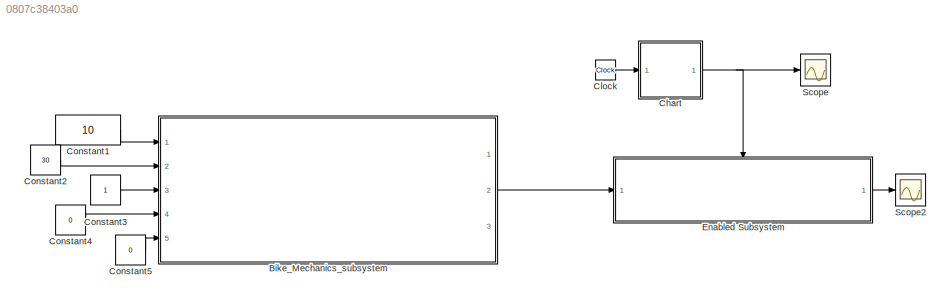
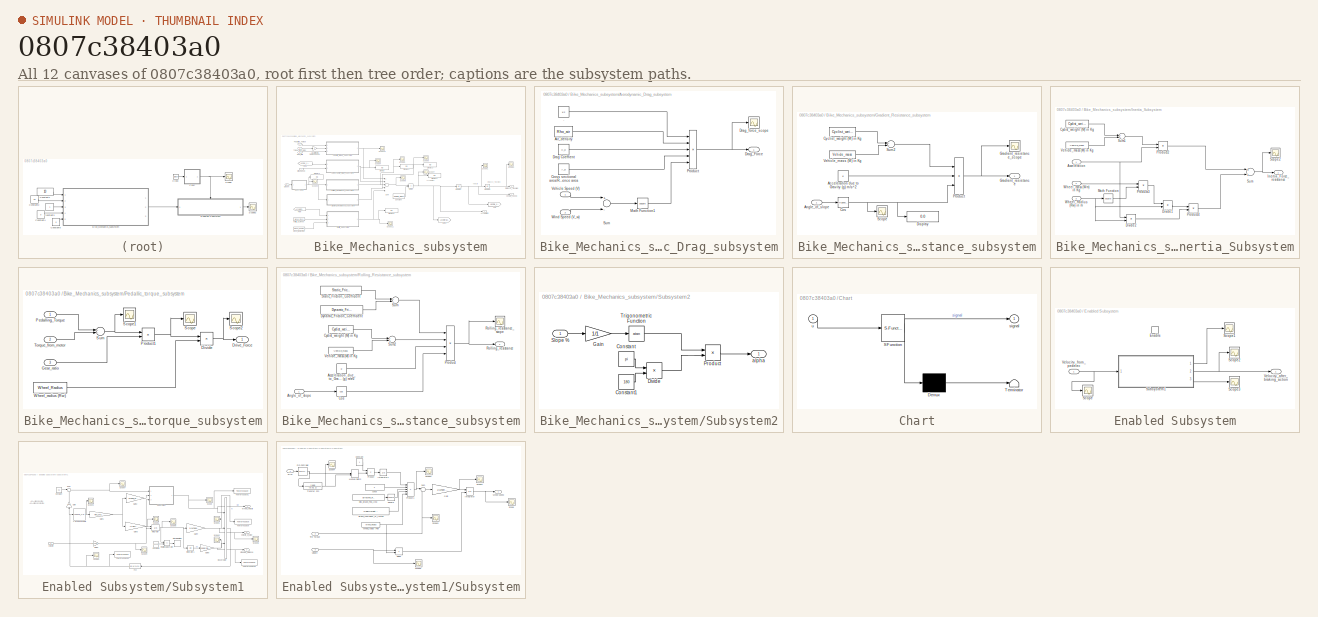
[diagram: thumbnail index - all 12 canvases of the model, root first then tree order]
MODEL slx_0807c38403a0
KIND model
CONFIG AbsTol = auto
CONFIG EnableMultiTasking = off
CONFIG FixedStep = auto
CONFIG InitFcn = Tire_mass = 0.25;
CONFIG MaxStep = auto
CONFIG MinStep = auto
CONFIG RelTol = 1e-3
CONFIG SampleTimeConstraint = Unconstrained
CONFIG Solver = VariableStepAuto
CONFIG SolverName = VariableStepAuto
CONFIG StartTime = 0.0
CONFIG StopTime = 200
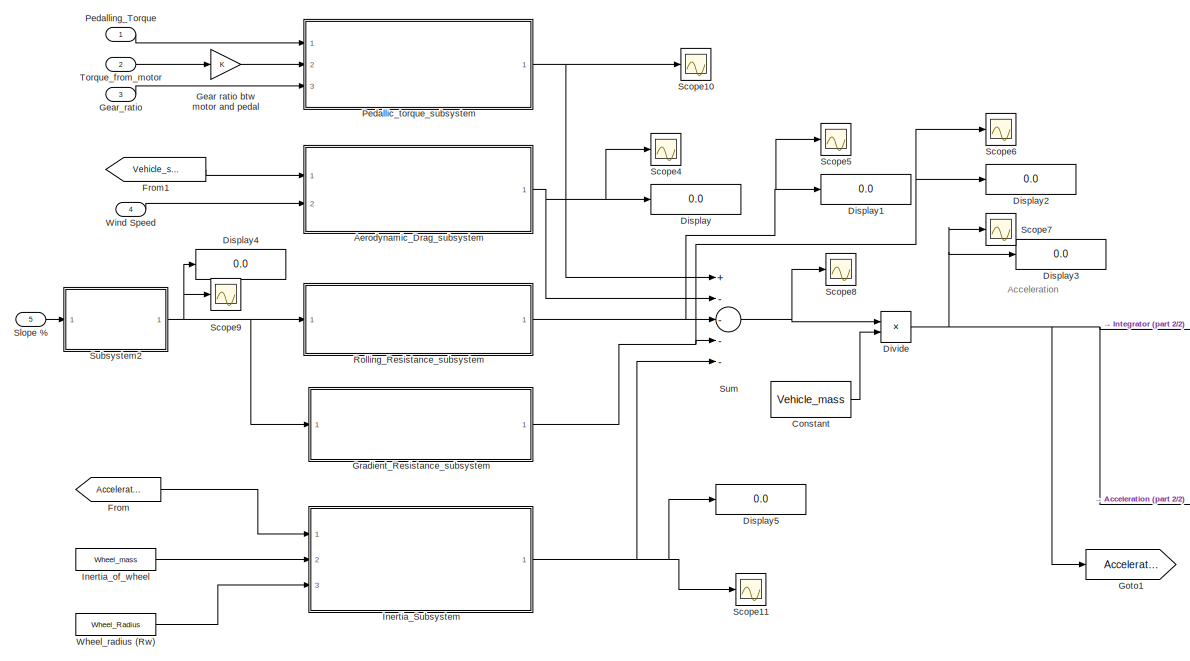
[diagram: Bike_Mechanics_subsystem - part 1/2, center side, full height]
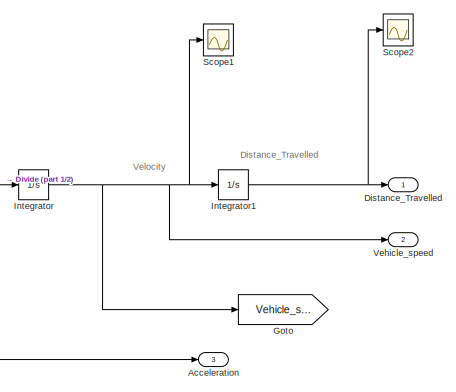
[diagram: Bike_Mechanics_subsystem - part 2/2, middle right region]
BLOCK [SubSystem] Bike_Mechanics_subsystem
  Ports = [5, 3]
  RequestExecContextInheritance = off
BLOCK [Outport] Bike_Mechanics_subsystem/Acceleration
  IconDisplay = Port number
  Port = 3
  VectorParamsAs1DForOutWhenUnconnected = off
BLOCK [SubSystem] Bike_Mechanics_subsystem/Aerodynamic_Drag_subsystem
  Ports = [2, 1]
  RequestExecContextInheritance = off
BLOCK [Constant] Bike_Mechanics_subsystem/Aerodynamic_Drag_subsystem/.
  Value = 1/2
BLOCK [Constant] Bike_Mechanics_subsystem/Aerodynamic_Drag_subsystem/Air_density
  Value = Rho_air
BLOCK [Constant] Bike_Mechanics_subsystem/Aerodynamic_Drag_subsystem/Cross sectional area//Reference area
  Value = A_d
BLOCK [Constant] Bike_Mechanics_subsystem/Aerodynamic_Drag_subsystem/Drag Coeffient
  Value = C_d
BLOCK [Outport] Bike_Mechanics_subsystem/Aerodynamic_Drag_subsystem/Drag_Force 
  IconDisplay = Port number
  VectorParamsAs1DForOutWhenUnconnected = off
BLOCK [Scope] Bike_Mechanics_subsystem/Aerodynamic_Drag_subsystem/Drag_force_scope
  Floating = off
  NumInputPorts = 1
  Ports = [1]
  ScopeSpecificationString = Simulink.scopes.TimeScopeBlockCfg('CurrentConfiguration', extmgr.ConfigurationSet(extmgr.Configuration('Core','General UI',true),extmgr.Configuration('Core','Source UI',true),extmgr.Configuration('Sources','WiredSimulink',true),extmgr.Configuration('Visuals','Time Domain',true,'SerializedDisplays',{struct('MinYLimReal','-15.22032','MaxYLimReal','136.98292','YLabelReal','','MinYLimMag','0.00000','M...<+1337ch>
BLOCK [Math] Bike_Mechanics_subsystem/Aerodynamic_Drag_subsystem/Math Function1
  Operator = square
  Ports = [1, 1]
BLOCK [Product] Bike_Mechanics_subsystem/Aerodynamic_Drag_subsystem/Product
  InputSameDT = off
  Inputs = 5
  OutDataTypeStr = Inherit: Inherit via internal rule
  Ports = [5, 1]
  RndMeth = Floor
  SaturateOnIntegerOverflow = off
BLOCK [Sum] Bike_Mechanics_subsystem/Aerodynamic_Drag_subsystem/Sum
  InputSameDT = off
  Inputs = +-
  OutDataTypeStr = Inherit: Inherit via internal rule
  Ports = [2, 1]
  SaturateOnIntegerOverflow = off
BLOCK [Inport] Bike_Mechanics_subsystem/Aerodynamic_Drag_subsystem/Vehicle Speed (V)
  IconDisplay = Port number
BLOCK [Inport] Bike_Mechanics_subsystem/Aerodynamic_Drag_subsystem/Wind Speed (V_w) 
  IconDisplay = Port number
  Port = 2
BLOCK [Constant] Bike_Mechanics_subsystem/Constant
  SampleTime = -1
  Value = Vehicle_mass
BLOCK [Display] Bike_Mechanics_subsystem/Display
  Decimation = 1
  Format = long
  Ports = [1]
BLOCK [Display] Bike_Mechanics_subsystem/Display1
  Decimation = 1
  Ports = [1]
BLOCK [Display] Bike_Mechanics_subsystem/Display2
  Decimation = 1
  Ports = [1]
BLOCK [Display] Bike_Mechanics_subsystem/Display3
  Decimation = 1
  Ports = [1]
BLOCK [Display] Bike_Mechanics_subsystem/Display4
  Decimation = 1
  Ports = [1]
BLOCK [Display] Bike_Mechanics_subsystem/Display5
  Decimation = 1
  Ports = [1]
BLOCK [Outport] Bike_Mechanics_subsystem/Distance_Travelled
  IconDisplay = Port number
  VectorParamsAs1DForOutWhenUnconnected = off
BLOCK [Product] Bike_Mechanics_subsystem/Divide
  InputSameDT = off
  Inputs = */
  OutDataTypeStr = Inherit: Inherit via internal rule
  Ports = [2, 1]
  RndMeth = Floor
  SaturateOnIntegerOverflow = off
BLOCK [From] Bike_Mechanics_subsystem/From
  GotoTag = Acceleration
BLOCK [From] Bike_Mechanics_subsystem/From1
  GotoTag = Vehicle_speed
BLOCK [Gain] Bike_Mechanics_subsystem/Gear ratio btw motor and pedal
  OutDataTypeStr = Inherit: Inherit via internal rule
  ParamDataTypeStr = Inherit: Inherit via internal rule
  SaturateOnIntegerOverflow = off
BLOCK [Inport] Bike_Mechanics_subsystem/Gear_ratio
  IconDisplay = Port number
  Port = 3
BLOCK [Goto] Bike_Mechanics_subsystem/Goto
  GotoTag = Vehicle_speed
BLOCK [Goto] Bike_Mechanics_subsystem/Goto1
  GotoTag = Acceleration
BLOCK [SubSystem] Bike_Mechanics_subsystem/Gradient_Resistance_subsystem
  Ports = [1, 1]
  RequestExecContextInheritance = off
BLOCK [Constant] Bike_Mechanics_subsystem/Gradient_Resistance_subsystem/Acceleration due to Gravity (g) m//s^2
  SampleTime = -1
  Value = g
BLOCK [Inport] Bike_Mechanics_subsystem/Gradient_Resistance_subsystem/Angle_of_slope
  IconDisplay = Port number
BLOCK [Trigonometry] Bike_Mechanics_subsystem/Gradient_Resistance_subsystem/Cos
  Ports = [1, 1]
BLOCK [Constant] Bike_Mechanics_subsystem/Gradient_Resistance_subsystem/Cyclist_weight (M) in Kg
  SampleTime = -1
  Value = Cyclist_weight
BLOCK [Display] Bike_Mechanics_subsystem/Gradient_Resistance_subsystem/Display
  Decimation = 1
  Ports = [1]
BLOCK [Outport] Bike_Mechanics_subsystem/Gradient_Resistance_subsystem/Gradient_resistance
  IconDisplay = Port number
  VectorParamsAs1DForOutWhenUnconnected = off
BLOCK [Scope] Bike_Mechanics_subsystem/Gradient_Resistance_subsystem/Gradient_resistance_scope
  Floating = off
  NumInputPorts = 1
  Ports = [1]
  ScopeSpecificationString = Simulink.scopes.TimeScopeBlockCfg('CurrentConfiguration', extmgr.ConfigurationSet(extmgr.Configuration('Core','General UI',true),extmgr.Configuration('Core','Source UI',true),extmgr.Configuration('Sources','WiredSimulink',true),extmgr.Configuration('Visuals','Time Domain',true,'SerializedDisplays',{struct('MinYLimReal','2.04176','MaxYLimReal','4.04176','YLabelReal','','MinYLimMag','2.04176','MaxYL...<+1325ch>
BLOCK [Product] Bike_Mechanics_subsystem/Gradient_Resistance_subsystem/Product
  InputSameDT = off
  Inputs = 3
  OutDataTypeStr = Inherit: Inherit via internal rule
  Ports = [3, 1]
  RndMeth = Floor
  SaturateOnIntegerOverflow = off
BLOCK [Scope] Bike_Mechanics_subsystem/Gradient_Resistance_subsystem/Scope
  Floating = off
  NumInputPorts = 1
  Ports = [1]
  ScopeSpecificationString = Simulink.scopes.TimeScopeBlockCfg('CurrentConfiguration', extmgr.ConfigurationSet(extmgr.Configuration('Core','General UI',true),extmgr.Configuration('Core','Source UI',true),extmgr.Configuration('Sources','WiredSimulink',true,'DataLoggingVariableName','ScopeData15'),extmgr.Configuration('Visuals','Time Domain',true),extmgr.Configuration('Tools','Plot Navigation',true),extmgr.Configuration('Tools'...<+41ch>
BLOCK [Sum] Bike_Mechanics_subsystem/Gradient_Resistance_subsystem/Sum2
  InputSameDT = off
  OutDataTypeStr = Inherit: Inherit via internal rule
  Ports = [2, 1]
  SaturateOnIntegerOverflow = off
BLOCK [Constant] Bike_Mechanics_subsystem/Gradient_Resistance_subsystem/Vehicle_mass (M) in Kg
  SampleTime = -1
  Value = Vehicle_mass
BLOCK [SubSystem] Bike_Mechanics_subsystem/Inertia_Subsystem
  Ports = [3, 1]
  RequestExecContextInheritance = off
BLOCK [Inport] Bike_Mechanics_subsystem/Inertia_Subsystem/Acceleration
  IconDisplay = Port number
BLOCK [Constant] Bike_Mechanics_subsystem/Inertia_Subsystem/Cyclist_weight (M) in Kg
  SampleTime = -1
  Value = Cyclist_weight
BLOCK [Product] Bike_Mechanics_subsystem/Inertia_Subsystem/Divide1
  InputSameDT = off
  Inputs = */
  OutDataTypeStr = Inherit: Inherit via internal rule
  Ports = [2, 1]
  RndMeth = Floor
  SaturateOnIntegerOverflow = off
BLOCK [Product] Bike_Mechanics_subsystem/Inertia_Subsystem/Divide2
  InputSameDT = off
  Inputs = */
  OutDataTypeStr = Inherit: Inherit via internal rule
  Ports = [2, 1]
  RndMeth = Floor
  SaturateOnIntegerOverflow = off
BLOCK [Outport] Bike_Mechanics_subsystem/Inertia_Subsystem/Inertia_Force_resistance
  IconDisplay = Port number
BLOCK [Math] Bike_Mechanics_subsystem/Inertia_Subsystem/Math Function
  Operator = square
  Ports = [1, 1]
BLOCK [Product] Bike_Mechanics_subsystem/Inertia_Subsystem/Product2
  InputSameDT = off
  OutDataTypeStr = Inherit: Inherit via internal rule
  Ports = [2, 1]
  RndMeth = Floor
  SaturateOnIntegerOverflow = off
BLOCK [Product] Bike_Mechanics_subsystem/Inertia_Subsystem/Product3
  InputSameDT = off
  OutDataTypeStr = Inherit: Inherit via internal rule
  Ports = [2, 1]
  RndMeth = Floor
  SaturateOnIntegerOverflow = off
BLOCK [Product] Bike_Mechanics_subsystem/Inertia_Subsystem/Product4
  InputSameDT = off
  OutDataTypeStr = Inherit: Inherit via internal rule
  Ports = [2, 1]
  RndMeth = Floor
  SaturateOnIntegerOverflow = off
BLOCK [Scope] Bike_Mechanics_subsystem/Inertia_Subsystem/Scope2
  Floating = off
  NumInputPorts = 1
  Ports = [1]
  ScopeSpecificationString = Simulink.scopes.TimeScopeBlockCfg('CurrentConfiguration', extmgr.ConfigurationSet(extmgr.Configuration('Core','General UI',true),extmgr.Configuration('Core','Source UI',true),extmgr.Configuration('Sources','WiredSimulink',true,'DataLoggingVariableName','ScopeData1'),extmgr.Configuration('Visuals','Time Domain',true,'SerializedDisplays',{struct('MinYLimReal','90.00000','MaxYLimReal','290.00000','YL...<+1386ch>
BLOCK [Sum] Bike_Mechanics_subsystem/Inertia_Subsystem/Sum
  InputSameDT = off
  OutDataTypeStr = Inherit: Inherit via internal rule
  Ports = [2, 1]
  SaturateOnIntegerOverflow = off
BLOCK [Sum] Bike_Mechanics_subsystem/Inertia_Subsystem/Sum1
  InputSameDT = off
  OutDataTypeStr = Inherit: Inherit via internal rule
  Ports = [2, 1]
  SaturateOnIntegerOverflow = off
BLOCK [Constant] Bike_Mechanics_subsystem/Inertia_Subsystem/Vehicle_mass (M) in Kg
  SampleTime = -1
  Value = Vehicle_mass
BLOCK [Inport] Bike_Mechanics_subsystem/Inertia_Subsystem/Wheel_Radius (Rw) in m
  IconDisplay = Port number
  Port = 3
BLOCK [Inport] Bike_Mechanics_subsystem/Inertia_Subsystem/Wheel_mass (Wm) in Kg
  IconDisplay = Port number
  Port = 2
BLOCK [Constant] Bike_Mechanics_subsystem/Inertia_of_wheel
  Value = Wheel_mass
BLOCK [Integrator] Bike_Mechanics_subsystem/Integrator
  Ports = [1, 1]
BLOCK [Integrator] Bike_Mechanics_subsystem/Integrator1
  Ports = [1, 1]
BLOCK [SubSystem] Bike_Mechanics_subsystem/Pedallic_torque_subsystem
  Ports = [3, 1]
  RequestExecContextInheritance = off
BLOCK [Product] Bike_Mechanics_subsystem/Pedallic_torque_subsystem/Divide
  InputSameDT = off
  Inputs = */
  OutDataTypeStr = Inherit: Inherit via internal rule
  Ports = [2, 1]
  RndMeth = Floor
  SaturateOnIntegerOverflow = off
BLOCK [Outport] Bike_Mechanics_subsystem/Pedallic_torque_subsystem/Drive_Force
  IconDisplay = Port number
  VectorParamsAs1DForOutWhenUnconnected = off
BLOCK [Inport] Bike_Mechanics_subsystem/Pedallic_torque_subsystem/Gear_ratio
  IconDisplay = Port number
  Port = 3
BLOCK [Inport] Bike_Mechanics_subsystem/Pedallic_torque_subsystem/Pedalling_Torque
  IconDisplay = Port number
BLOCK [Product] Bike_Mechanics_subsystem/Pedallic_torque_subsystem/Product1
  InputSameDT = off
  OutDataTypeStr = Inherit: Inherit via internal rule
  Ports = [2, 1]
  RndMeth = Floor
  SaturateOnIntegerOverflow = off
BLOCK [Scope] Bike_Mechanics_subsystem/Pedallic_torque_subsystem/Scope
  Floating = off
  NumInputPorts = 1
  Ports = [1]
  ScopeSpecificationString = Simulink.scopes.TimeScopeBlockCfg('CurrentConfiguration', extmgr.ConfigurationSet(extmgr.Configuration('Core','General UI',true),extmgr.Configuration('Core','Source UI',true),extmgr.Configuration('Sources','WiredSimulink',true,'DataLoggingVariableName','ScopeData10'),extmgr.Configuration('Visuals','Time Domain',true,'SerializedDisplays',{struct('MinYLimReal','30.00000','MaxYLimReal','50.00000','YL...<+1374ch>
BLOCK [Scope] Bike_Mechanics_subsystem/Pedallic_torque_subsystem/Scope1
  Floating = off
  NumInputPorts = 1
  Ports = [1]
  ScopeSpecificationString = Simulink.scopes.TimeScopeBlockCfg('CurrentConfiguration', extmgr.ConfigurationSet(extmgr.Configuration('Core','General UI',true),extmgr.Configuration('Core','Source UI',true),extmgr.Configuration('Sources','WiredSimulink',true,'DataLoggingVariableName','ScopeData11'),extmgr.Configuration('Visuals','Time Domain',true,'SerializedDisplays',{struct('MinYLimReal','30.00000','MaxYLimReal','50.00000','YL...<+1369ch>
BLOCK [Scope] Bike_Mechanics_subsystem/Pedallic_torque_subsystem/Scope2
  Floating = off
  NumInputPorts = 1
  Ports = [1]
  ScopeSpecificationString = Simulink.scopes.TimeScopeBlockCfg('CurrentConfiguration', extmgr.ConfigurationSet(extmgr.Configuration('Core','General UI',true),extmgr.Configuration('Core','Source UI',true),extmgr.Configuration('Sources','WiredSimulink',true,'DataLoggingVariableName','ScopeData13'),extmgr.Configuration('Visuals','Time Domain',true,'SerializedDisplays',{struct('MinYLimReal','-15.625','MaxYLimReal','140.625','YLab...<+1364ch>
BLOCK [Sum] Bike_Mechanics_subsystem/Pedallic_torque_subsystem/Sum
  InputSameDT = off
  OutDataTypeStr = Inherit: Inherit via internal rule
  Ports = [2, 1]
  SaturateOnIntegerOverflow = off
BLOCK [Inport] Bike_Mechanics_subsystem/Pedallic_torque_subsystem/Torque_from_motor
  IconDisplay = Port number
  Port = 2
BLOCK [Constant] Bike_Mechanics_subsystem/Pedallic_torque_subsystem/Wheel_radius (Rw) 
  SampleTime = -1
  Value = Wheel_Radius
BLOCK [Inport] Bike_Mechanics_subsystem/Pedalling_Torque
  IconDisplay = Port number
BLOCK [SubSystem] Bike_Mechanics_subsystem/Rolling_Resistance_subsystem
  Ports = [1, 1]
  RequestExecContextInheritance = off
BLOCK [Constant] Bike_Mechanics_subsystem/Rolling_Resistance_subsystem/Acceleration_due_to_Gravity (g) m//s^2
  SampleTime = -1
  Value = g
BLOCK [Inport] Bike_Mechanics_subsystem/Rolling_Resistance_subsystem/Angle_of_slope
  IconDisplay = Port number
BLOCK [Trigonometry] Bike_Mechanics_subsystem/Rolling_Resistance_subsystem/Cos
  Operator = cos
  Ports = [1, 1]
BLOCK [Constant] Bike_Mechanics_subsystem/Rolling_Resistance_subsystem/Cyclist_weight (M) in Kg
  SampleTime = -1
  Value = Cyclist_weight
BLOCK [Constant] Bike_Mechanics_subsystem/Rolling_Resistance_subsystem/Dynamic_Friction_Coefficient
  SampleTime = -1
  Value = Dynamic_Friction_Coefficient
BLOCK [Product] Bike_Mechanics_subsystem/Rolling_Resistance_subsystem/Product
  InputSameDT = off
  Inputs = 4
  OutDataTypeStr = Inherit: Inherit via internal rule
  Ports = [4, 1]
  RndMeth = Floor
  SaturateOnIntegerOverflow = off
BLOCK [Outport] Bike_Mechanics_subsystem/Rolling_Resistance_subsystem/Rolling_resistance
  IconDisplay = Port number
  VectorParamsAs1DForOutWhenUnconnected = off
BLOCK [Scope] Bike_Mechanics_subsystem/Rolling_Resistance_subsystem/Rolling_resistance_scope
  Floating = off
  NumInputPorts = 1
  Ports = [1]
  ScopeSpecificationString = Simulink.scopes.TimeScopeBlockCfg('CurrentConfiguration', extmgr.ConfigurationSet(extmgr.Configuration('Core','General UI',true),extmgr.Configuration('Core','Source UI',true),extmgr.Configuration('Sources','WiredSimulink',true),extmgr.Configuration('Visuals','Time Domain',true,'SerializedDisplays',{struct('MinYLimReal','2.2373','MaxYLimReal','4.2373','YLabelReal','','MinYLimMag','2.2373','MaxYLimM...<+1352ch>
BLOCK [Constant] Bike_Mechanics_subsystem/Rolling_Resistance_subsystem/Static_Friction_Coefficient
  SampleTime = -1
  Value = Static_Friction_Coefficient
BLOCK [Sum] Bike_Mechanics_subsystem/Rolling_Resistance_subsystem/Sum
  InputSameDT = off
  Inputs = +|+
  OutDataTypeStr = Inherit: Inherit via internal rule
  Ports = [2, 1]
  SaturateOnIntegerOverflow = off
BLOCK [Sum] Bike_Mechanics_subsystem/Rolling_Resistance_subsystem/Sum2
  InputSameDT = off
  OutDataTypeStr = Inherit: Inherit via internal rule
  Ports = [2, 1]
  SaturateOnIntegerOverflow = off
BLOCK [Constant] Bike_Mechanics_subsystem/Rolling_Resistance_subsystem/Vehicle_mass (M) in Kg
  SampleTime = -1
  Value = Vehicle_mass
BLOCK [Scope] Bike_Mechanics_subsystem/Scope1
  Floating = off
  NumInputPorts = 1
  Ports = [1]
  ScopeSpecificationString = Simulink.scopes.TimeScopeBlockCfg('CurrentConfiguration', extmgr.ConfigurationSet(extmgr.Configuration('Core','General UI',true,'FigureColor',[1 1 1]),extmgr.Configuration('Core','Source UI',true),extmgr.Configuration('Sources','WiredSimulink',true,'DataLoggingVariableName','ScopeData2'),extmgr.Configuration('Visuals','Time Domain',true,'SerializedDisplays',{struct('MinYLimReal','-3.03604','MaxYLi...<+1676ch>
BLOCK [Scope] Bike_Mechanics_subsystem/Scope10
  Floating = off
  NumInputPorts = 1
  Ports = [1]
  ScopeSpecificationString = Simulink.scopes.TimeScopeBlockCfg('CurrentConfiguration', extmgr.ConfigurationSet(extmgr.Configuration('Core','General UI',true),extmgr.Configuration('Core','Source UI',true),extmgr.Configuration('Sources','WiredSimulink',true,'DataLoggingVariableName','ScopeData3'),extmgr.Configuration('Visuals','Time Domain',true,'SerializedDisplays',{struct('MinYLimReal','33.33333','MaxYLimReal','233.33333','YL...<+1500ch>
BLOCK [Scope] Bike_Mechanics_subsystem/Scope11
  Floating = off
  NumInputPorts = 1
  Ports = [1]
  ScopeSpecificationString = Simulink.scopes.TimeScopeBlockCfg('CurrentConfiguration', extmgr.ConfigurationSet(extmgr.Configuration('Core','General UI',true),extmgr.Configuration('Core','Source UI',true),extmgr.Configuration('Sources','WiredSimulink',true,'DataLoggingVariableName','ScopeData4'),extmgr.Configuration('Visuals','Time Domain',true,'SerializedDisplays',{struct('MinYLimReal','-81.27058','MaxYLimReal','138.17866','Y...<+1438ch>
BLOCK [Scope] Bike_Mechanics_subsystem/Scope2
  Floating = off
  NumInputPorts = 1
  Ports = [1]
  ScopeSpecificationString = Simulink.scopes.TimeScopeBlockCfg('CurrentConfiguration', extmgr.ConfigurationSet(extmgr.Configuration('Core','General UI',true),extmgr.Configuration('Core','Source UI',true),extmgr.Configuration('Sources','WiredSimulink',true,'DataLoggingVariableName','ScopeData5'),extmgr.Configuration('Visuals','Time Domain',true,'SerializedDisplays',{struct('MinYLimReal','-2968.22015','MaxYLimReal','26713.98135...<+1396ch>
BLOCK [Scope] Bike_Mechanics_subsystem/Scope4
  Floating = off
  NumInputPorts = 1
  Ports = [1]
  ScopeSpecificationString = Simulink.scopes.TimeScopeBlockCfg('CurrentConfiguration', extmgr.ConfigurationSet(extmgr.Configuration('Core','General UI',true),extmgr.Configuration('Core','Source UI',true),extmgr.Configuration('Sources','WiredSimulink',true,'DataLoggingVariableName','ScopeData7'),extmgr.Configuration('Visuals','Time Domain',true,'SerializedDisplays',{struct('MinYLimReal','-0.27396','MaxYLimReal','0.07202','YLab...<+1431ch>
BLOCK [Scope] Bike_Mechanics_subsystem/Scope5
  Floating = off
  NumInputPorts = 1
  Ports = [1]
  ScopeSpecificationString = Simulink.scopes.TimeScopeBlockCfg('CurrentConfiguration', extmgr.ConfigurationSet(extmgr.Configuration('Core','General UI',true),extmgr.Configuration('Core','Source UI',true),extmgr.Configuration('Sources','WiredSimulink',true,'DataLoggingVariableName','ScopeData8'),extmgr.Configuration('Visuals','Time Domain',true,'SerializedDisplays',{struct('MinYLimReal','2.64842','MaxYLimReal','2.64873','YLabe...<+1412ch>
BLOCK [Scope] Bike_Mechanics_subsystem/Scope6
  Floating = off
  NumInputPorts = 1
  Ports = [1]
  ScopeSpecificationString = Simulink.scopes.TimeScopeBlockCfg('CurrentConfiguration', extmgr.ConfigurationSet(extmgr.Configuration('Core','General UI',true),extmgr.Configuration('Core','Source UI',true),extmgr.Configuration('Sources','WiredSimulink',true,'DataLoggingVariableName','ScopeData9'),extmgr.Configuration('Visuals','Time Domain',true,'SerializedDisplays',{struct('MinYLimReal','-1.51275','MaxYLimReal','13.61476','YLa...<+1392ch>
BLOCK [Scope] Bike_Mechanics_subsystem/Scope7
  Floating = off
  NumInputPorts = 1
  Ports = [1]
  ScopeSpecificationString = Simulink.scopes.TimeScopeBlockCfg('CurrentConfiguration', extmgr.ConfigurationSet(extmgr.Configuration('Core','General UI',true),extmgr.Configuration('Core','Source UI',true),extmgr.Configuration('Sources','WiredSimulink',true,'DataLoggingVariableName','ScopeData10'),extmgr.Configuration('Visuals','Time Domain',true,'SerializedDisplays',{struct('MinYLimReal','-0.15955','MaxYLimReal','1.43598','YLa...<+1366ch>
BLOCK [Scope] Bike_Mechanics_subsystem/Scope8
  Floating = off
  NumInputPorts = 1
  Ports = [1]
  ScopeSpecificationString = Simulink.scopes.TimeScopeBlockCfg('CurrentConfiguration', extmgr.ConfigurationSet(extmgr.Configuration('Core','General UI',true),extmgr.Configuration('Core','Source UI',true),extmgr.Configuration('Sources','WiredSimulink',true,'DataLoggingVariableName','ScopeData11'),extmgr.Configuration('Visuals','Time Domain',true,'SerializedDisplays',{struct('MinYLimReal','6270.86832','MaxYLimReal','26270.86832...<+1389ch>
BLOCK [Scope] Bike_Mechanics_subsystem/Scope9
  Floating = off
  NumInputPorts = 1
  Ports = [1]
  ScopeSpecificationString = Simulink.scopes.TimeScopeBlockCfg('CurrentConfiguration', extmgr.ConfigurationSet(extmgr.Configuration('Core','General UI',true),extmgr.Configuration('Core','Source UI',true),extmgr.Configuration('Sources','WiredSimulink',true,'DataLoggingVariableName','ScopeData12'),extmgr.Configuration('Visuals','Time Domain',true,'SerializedDisplays',{struct('MinYLimReal','-1.00000','MaxYLimReal','1.00000','YLa...<+1432ch>
BLOCK [Inport] Bike_Mechanics_subsystem/Slope %
  IconDisplay = Port number
  Port = 5
BLOCK [SubSystem] Bike_Mechanics_subsystem/Subsystem2
  Ports = [1, 1]
  RequestExecContextInheritance = off
BLOCK [Constant] Bike_Mechanics_subsystem/Subsystem2/Constant
  SampleTime = -1
  Value = pi
BLOCK [Constant] Bike_Mechanics_subsystem/Subsystem2/Constant1
  Value = 180
BLOCK [Product] Bike_Mechanics_subsystem/Subsystem2/Divide
  InputSameDT = off
  Inputs = */
  OutDataTypeStr = Inherit: Inherit via internal rule
  Ports = [2, 1]
  RndMeth = Floor
  SaturateOnIntegerOverflow = off
BLOCK [Gain] Bike_Mechanics_subsystem/Subsystem2/Gain
  Gain = 1/1
  OutDataTypeStr = Inherit: Inherit via internal rule
  ParamDataTypeStr = Inherit: Inherit via internal rule
  SaturateOnIntegerOverflow = off
BLOCK [Product] Bike_Mechanics_subsystem/Subsystem2/Product
  InputSameDT = off
  OutDataTypeStr = Inherit: Inherit via internal rule
  Ports = [2, 1]
  RndMeth = Floor
  SaturateOnIntegerOverflow = off
BLOCK [Inport] Bike_Mechanics_subsystem/Subsystem2/Slope %
  IconDisplay = Port number
BLOCK [Trigonometry] Bike_Mechanics_subsystem/Subsystem2/Trigonometric Function
  Operator = atan
  Ports = [1, 1]
BLOCK [Outport] Bike_Mechanics_subsystem/Subsystem2/alpha
  IconDisplay = Port number
  VectorParamsAs1DForOutWhenUnconnected = off
BLOCK [Sum] Bike_Mechanics_subsystem/Sum
  InputSameDT = off
  Inputs = +----
  OutDataTypeStr = Inherit: Inherit via internal rule
  Ports = [5, 1]
  SaturateOnIntegerOverflow = off
BLOCK [Inport] Bike_Mechanics_subsystem/Torque_from_motor
  IconDisplay = Port number
  Port = 2
BLOCK [Outport] Bike_Mechanics_subsystem/Vehicle_speed
  IconDisplay = Port number
  Port = 2
  VectorParamsAs1DForOutWhenUnconnected = off
BLOCK [Constant] Bike_Mechanics_subsystem/Wheel_radius (Rw) 
  Value = Wheel_Radius
BLOCK [Inport] Bike_Mechanics_subsystem/Wind Speed
  IconDisplay = Port number
  Port = 4
BLOCK [SubSystem] Chart
  BlockKeywords = __PRM__SERIALIZED__DATA__:Stateflow Chart,Stateflow Diagram
  ErrorFcn = Stateflow.Translate.translate
  PermitHierarchicalResolution = ExplicitOnly
  Ports = [1, 1]
  RequestExecContextInheritance = off
  SFBlockType = Chart
  TreatAsAtomicUnit = on
BLOCK [Demux] Chart/ Demux 
  Outputs = 1
  Ports = [1, 1]
BLOCK [S-Function] Chart/ SFunction 
  EnableBusSupport = on
  FunctionName = sf_sfun
  PortCounts = [1 2]
  Ports = [1, 2]
  SFcnIsStateOwnerBlock = off
  SFunctionDeploymentMode = off
  Tag = Stateflow S-Function 3
BLOCK [Terminator] Chart/ Terminator 
BLOCK [Outport] Chart/signal
  IconDisplay = Port number
BLOCK [Inport] Chart/u
  IconDisplay = Port number
BLOCK [Clock] Clock
BLOCK [Constant] Constant1
  SampleTime = -1
  Value = 10
BLOCK [Constant] Constant2
  SampleTime = -1
  Value = 30
BLOCK [Constant] Constant3
  SampleTime = -1
BLOCK [Constant] Constant4
  Value = 0
BLOCK [Constant] Constant5
  SampleTime = -1
  Value = 0
BLOCK [SubSystem] Enabled Subsystem
  Ports = [1, 1, 1]
  RequestExecContextInheritance = off
  TreatAsAtomicUnit = on
BLOCK [EnablePort] Enabled Subsystem/Enable
  Ports = []
BLOCK [Scope] Enabled Subsystem/Scope
  Floating = off
  NumInputPorts = 1
  Ports = [1]
  ScopeSpecificationString = Simulink.scopes.TimeScopeBlockCfg('CurrentConfiguration', extmgr.ConfigurationSet(extmgr.Configuration('Core','General UI',true),extmgr.Configuration('Core','Source UI',true),extmgr.Configuration('Sources','WiredSimulink',true,'DataLoggingVariableName','ScopeData2'),extmgr.Configuration('Visuals','Time Domain',true,'SerializedDisplays',{struct('MinYLimReal','24.28808','MaxYLimReal','24.28834','YLa...<+1411ch>
BLOCK [Scope] Enabled Subsystem/Scope1
  Floating = off
  NumInputPorts = 1
  Ports = [1]
  ScopeSpecificationString = Simulink.scopes.TimeScopeBlockCfg('CurrentConfiguration', extmgr.ConfigurationSet(extmgr.Configuration('Core','General UI',true),extmgr.Configuration('Core','Source UI',true),extmgr.Configuration('Sources','WiredSimulink',true,'DataLoggingVariableName','ScopeData4'),extmgr.Configuration('Visuals','Time Domain',true,'SerializedDisplays',{struct('MinYLimReal','-2.8192','MaxYLimReal','25.37282','YLab...<+1424ch>
BLOCK [Scope] Enabled Subsystem/Scope2
  Floating = off
  NumInputPorts = 1
  Ports = [1]
  ScopeSpecificationString = Simulink.scopes.TimeScopeBlockCfg('CurrentConfiguration', extmgr.ConfigurationSet(extmgr.Configuration('Core','General UI',true),extmgr.Configuration('Core','Source UI',true),extmgr.Configuration('Sources','WiredSimulink',true,'DataLoggingVariableName','ScopeData5'),extmgr.Configuration('Visuals','Time Domain',true,'SerializedDisplays',{struct('MinYLimReal','-2.81733','MaxYLimReal','25.37261','YLa...<+1449ch>
BLOCK [Scope] Enabled Subsystem/Scope3
  Floating = off
  NumInputPorts = 1
  Ports = [1]
  ScopeSpecificationString = Simulink.scopes.TimeScopeBlockCfg('CurrentConfiguration', extmgr.ConfigurationSet(extmgr.Configuration('Core','General UI',true),extmgr.Configuration('Core','Source UI',true),extmgr.Configuration('Sources','WiredSimulink',true,'DataLoggingVariableName','ScopeData6'),extmgr.Configuration('Visuals','Time Domain',true,'SerializedDisplays',{struct('MinYLimReal','-0.19417','MaxYLimReal','1.74754','YLab...<+1426ch>
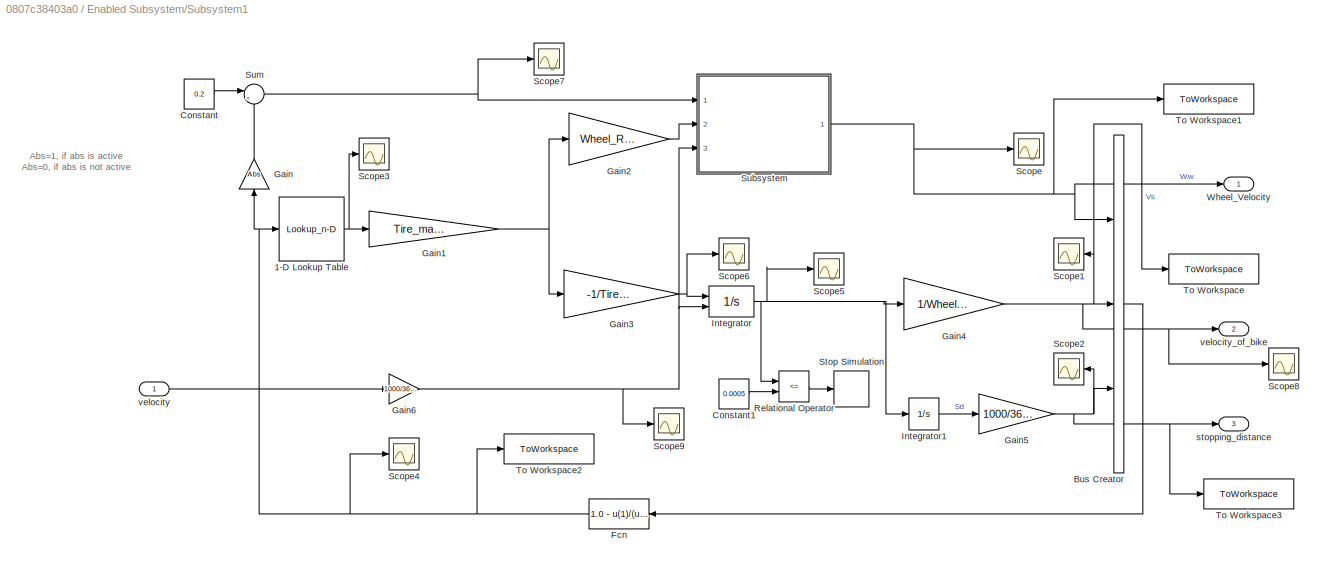
BLOCK [SubSystem] Enabled Subsystem/Subsystem1
  Ports = [1, 3]
  RequestExecContextInheritance = off
BLOCK [Lookup_n-D] Enabled Subsystem/Subsystem1/1-D Lookup Table
  BreakpointsForDimension1 = [0	0.0500000000000000	0.100000000000000	0.150000000000000	0.200000000000000	0.250000000000000	0.300000000000000	0.350000000000000	0.400000000000000	0.450000000000000	0.500000000000000	0.550000000000000	0.600000000000000	0.650000000000000	0.700000000000000	0.750000000000000	0.800000000000000	0.850000000000000	0.900000000000000	0.950000000000000	1]
  InternalRulePriority = Speed
  NumberOfTableDimensions = 1
  Ports = [1, 1]
  RndMeth = Simplest
  Table = [0	0.400000000000000	0.800000000000000	0.970000000000000	1	0.980000000000000	0.960000000000000	0.940000000000000	0.920000000000000	0.900000000000000	0.880000000000000	0.855000000000000	0.830000000000000	0.810000000000000	0.790000000000000	0.770000000000000	0.750000000000000	0.730000000000000	0.720000000000000	0.710000000000000	0.700000000000000]
BLOCK [BusCreator] Enabled Subsystem/Subsystem1/Bus Creator
  DisplayOption = bar
  InheritFromInputs = on
  Inputs = 3
  Ports = [3, 1]
BLOCK [Constant] Enabled Subsystem/Subsystem1/Constant
  Value = 0.2
BLOCK [Constant] Enabled Subsystem/Subsystem1/Constant1
  Value = 0.0005
BLOCK [Fcn] Enabled Subsystem/Subsystem1/Fcn
  Expr = 1.0 - u(1)/(u(2)+ (u(2)==0) * eps)
BLOCK [Gain] Enabled Subsystem/Subsystem1/Gain
  Gain = Abs
  OutDataTypeStr = Inherit: Inherit via internal rule
  ParamDataTypeStr = Inherit: Inherit via internal rule
  SaturateOnIntegerOverflow = off
BLOCK [Gain] Enabled Subsystem/Subsystem1/Gain1
  Gain = Tire_mass * g /2
  OutDataTypeStr = Inherit: Inherit via internal rule
  ParamDataTypeStr = Inherit: Inherit via internal rule
  SaturateOnIntegerOverflow = off
BLOCK [Gain] Enabled Subsystem/Subsystem1/Gain2
  Gain = Wheel_Radius
  OutDataTypeStr = Inherit: Inherit via internal rule
  ParamDataTypeStr = Inherit: Inherit via internal rule
  SaturateOnIntegerOverflow = off
BLOCK [Gain] Enabled Subsystem/Subsystem1/Gain3
  Gain = -1/Tire_mass
  OutDataTypeStr = Inherit: Inherit via internal rule
  ParamDataTypeStr = Inherit: Inherit via internal rule
  SaturateOnIntegerOverflow = off
BLOCK [Gain] Enabled Subsystem/Subsystem1/Gain4
  Gain = 1/Wheel_Radius
  OutDataTypeStr = Inherit: Inherit via internal rule
  ParamDataTypeStr = Inherit: Inherit via internal rule
  SaturateOnIntegerOverflow = off
BLOCK [Gain] Enabled Subsystem/Subsystem1/Gain5
  Gain = 1000/3600
  OutDataTypeStr = Inherit: Inherit via internal rule
  ParamDataTypeStr = Inherit: Inherit via internal rule
  SaturateOnIntegerOverflow = off
BLOCK [Gain] Enabled Subsystem/Subsystem1/Gain6
  Gain = 1000/3600
  OutDataTypeStr = Inherit: Inherit via internal rule
  ParamDataTypeStr = Inherit: Inherit via internal rule
  SaturateOnIntegerOverflow = off
BLOCK [Integrator] Enabled Subsystem/Subsystem1/Integrator
  InitialCondition = V
  InitialConditionSource = external
  LimitOutput = on
  LowerSaturationLimit = 0
  Ports = [2, 1]
  UpperSaturationLimit = 1000
  ZeroCross = off
BLOCK [Integrator] Enabled Subsystem/Subsystem1/Integrator1
  Ports = [1, 1]
BLOCK [RelationalOperator] Enabled Subsystem/Subsystem1/Relational Operator
  InputSameDT = off
  Operator = <=
  OutDataTypeStr = boolean
  Ports = [2, 1]
  RndMeth = Simplest
BLOCK [Scope] Enabled Subsystem/Subsystem1/Scope
  Floating = off
  NumInputPorts = 1
  Ports = [1]
  ScopeSpecificationString = Simulink.scopes.TimeScopeBlockCfg('CurrentConfiguration', extmgr.ConfigurationSet(extmgr.Configuration('Core','General UI',true),extmgr.Configuration('Core','Source UI',true),extmgr.Configuration('Sources','WiredSimulink',true),extmgr.Configuration('Visuals','Time Domain',true,'SerializedDisplays',{struct('MinYLimReal','-2.81106','MaxYLimReal','25.29957','YLabelReal','','MinYLimMag','0.00000','Max...<+1397ch>
BLOCK [Scope] Enabled Subsystem/Subsystem1/Scope1
  Floating = off
  NumInputPorts = 1
  Ports = [1]
  ScopeSpecificationString = Simulink.scopes.TimeScopeBlockCfg('CurrentConfiguration', extmgr.ConfigurationSet(extmgr.Configuration('Core','General UI',true),extmgr.Configuration('Core','Source UI',true),extmgr.Configuration('Sources','WiredSimulink',true,'DataLoggingVariableName','ScopeData1'),extmgr.Configuration('Visuals','Time Domain',true,'SerializedDisplays',{struct('MinYLimReal','-1.93038','MaxYLimReal','32.49507','YLa...<+1436ch>
BLOCK [Scope] Enabled Subsystem/Subsystem1/Scope2
  Floating = off
  NumInputPorts = 1
  Ports = [1]
  ScopeSpecificationString = Simulink.scopes.TimeScopeBlockCfg('CurrentConfiguration', extmgr.ConfigurationSet(extmgr.Configuration('Core','General UI',true),extmgr.Configuration('Core','Source UI',true),extmgr.Configuration('Sources','WiredSimulink',true,'DataLoggingVariableName','ScopeData2'),extmgr.Configuration('Visuals','Time Domain',true,'SerializedDisplays',{struct('MinYLimReal','-2.66887','MaxYLimReal','24.01984','YLa...<+1393ch>
BLOCK [Scope] Enabled Subsystem/Subsystem1/Scope3
  Floating = off
  NumInputPorts = 1
  Ports = [1]
  ScopeSpecificationString = Simulink.scopes.TimeScopeBlockCfg('CurrentConfiguration', extmgr.ConfigurationSet(extmgr.Configuration('Core','General UI',true),extmgr.Configuration('Core','Source UI',true),extmgr.Configuration('Sources','WiredSimulink',true,'DataLoggingVariableName','ScopeData5'),extmgr.Configuration('Visuals','Time Domain',true,'SerializedDisplays',{struct('MinYLimReal','-3.68589','MaxYLimReal','1.52065','YLab...<+1400ch>
BLOCK [Scope] Enabled Subsystem/Subsystem1/Scope4
  Floating = off
  NumInputPorts = 1
  Ports = [1]
  ScopeSpecificationString = Simulink.scopes.TimeScopeBlockCfg('CurrentConfiguration', extmgr.ConfigurationSet(extmgr.Configuration('Core','General UI',true),extmgr.Configuration('Core','Source UI',true),extmgr.Configuration('Sources','WiredSimulink',true,'DataLoggingVariableName','ScopeData7'),extmgr.Configuration('Visuals','Time Domain',true,'SerializedDisplays',{struct('MinYLimReal','-1.58686','MaxYLimReal','1.28743','YLab...<+1435ch>
BLOCK [Scope] Enabled Subsystem/Subsystem1/Scope5
  Floating = off
  NumInputPorts = 1
  Ports = [1]
  ScopeSpecificationString = Simulink.scopes.TimeScopeBlockCfg('CurrentConfiguration', extmgr.ConfigurationSet(extmgr.Configuration('Core','General UI',true),extmgr.Configuration('Core','Source UI',true),extmgr.Configuration('Sources','WiredSimulink',true,'DataLoggingVariableName','ScopeData1'),extmgr.Configuration('Visuals','Time Domain',true,'SerializedDisplays',{struct('MinYLimReal','-2.32388','MaxYLimReal','20.9149','YLab...<+1421ch>
BLOCK [Scope] Enabled Subsystem/Subsystem1/Scope6
  Floating = off
  NumInputPorts = 1
  Ports = [1]
  ScopeSpecificationString = Simulink.scopes.TimeScopeBlockCfg('CurrentConfiguration', extmgr.ConfigurationSet(extmgr.Configuration('Core','General UI',true),extmgr.Configuration('Core','Source UI',true),extmgr.Configuration('Sources','WiredSimulink',true,'DataLoggingVariableName','ScopeData2'),extmgr.Configuration('Visuals','Time Domain',true,'SerializedDisplays',{struct('MinYLimReal','-5.51796','MaxYLimReal','0.61311','YLab...<+1389ch>
BLOCK [Scope] Enabled Subsystem/Subsystem1/Scope7
  Floating = off
  NumInputPorts = 1
  Ports = [1]
  ScopeSpecificationString = Simulink.scopes.TimeScopeBlockCfg('CurrentConfiguration', extmgr.ConfigurationSet(extmgr.Configuration('Core','General UI',true),extmgr.Configuration('Core','Source UI',true),extmgr.Configuration('Sources','WiredSimulink',true,'DataLoggingVariableName','ScopeData1'),extmgr.Configuration('Visuals','Time Domain',true,'SerializedDisplays',{struct('MinYLimReal','-1.00603','MaxYLimReal','1.0543','YLabe...<+1383ch>
BLOCK [Scope] Enabled Subsystem/Subsystem1/Scope8
  Floating = off
  NumInputPorts = 1
  Ports = [1]
  ScopeSpecificationString = Simulink.scopes.TimeScopeBlockCfg('CurrentConfiguration', extmgr.ConfigurationSet(extmgr.Configuration('Core','General UI',true),extmgr.Configuration('Core','Source UI',true),extmgr.Configuration('Sources','WiredSimulink',true,'DataLoggingVariableName','ScopeData5'),extmgr.Configuration('Visuals','Time Domain',true,'SerializedDisplays',{struct('MinYLimReal','-2.80919','MaxYLimReal','25.29936','YLa...<+1409ch>
BLOCK [Scope] Enabled Subsystem/Subsystem1/Scope9
  Floating = off
  NumInputPorts = 1
  Ports = [1]
  ScopeSpecificationString = Simulink.scopes.TimeScopeBlockCfg('CurrentConfiguration', extmgr.ConfigurationSet(extmgr.Configuration('Core','General UI',true),extmgr.Configuration('Core','Source UI',true),extmgr.Configuration('Sources','WiredSimulink',true,'DataLoggingVariableName','ScopeData7'),extmgr.Configuration('Visuals','Time Domain',true,'SerializedDisplays',{struct('MinYLimReal','6.74669','MaxYLimReal','6.746762','YLab...<+1391ch>
BLOCK [Stop] Enabled Subsystem/Subsystem1/Stop Simulation
BLOCK [SubSystem] Enabled Subsystem/Subsystem1/Subsystem
  Ports = [3, 1]
  RequestExecContextInheritance = off
BLOCK [Constant] Enabled Subsystem/Subsystem1/Subsystem/Brake_coefficient_of_friction
  Value = Coefficient_of_Brake_friction
BLOCK [Constant] Enabled Subsystem/Subsystem1/Subsystem/Constant
BLOCK [Constant] Enabled Subsystem/Subsystem1/Subsystem/Disc_Brake_Pad_Area
  Value = Effective_Radius_of_Disc
BLOCK [Product] Enabled Subsystem/Subsystem1/Subsystem/Divide
  InputSameDT = off
  Inputs = */
  OutDataTypeStr = Inherit: Inherit via internal rule
  Ports = [2, 1]
  RndMeth = Floor
  SaturateOnIntegerOverflow = off
BLOCK [Gain] Enabled Subsystem/Subsystem1/Subsystem/Gain
  Gain = 1/Wheel_Inertia
  OutDataTypeStr = Inherit: Inherit via internal rule
  ParamDataTypeStr = Inherit: Inherit via internal rule
  SaturateOnIntegerOverflow = off
BLOCK [Integrator] Enabled Subsystem/Subsystem1/Subsystem/Integrator
  InitialCondition = V/Wheel_Radius
  InitialConditionSource = external
  LimitOutput = on
  LowerSaturationLimit = 0
  Ports = [2, 1]
  UpperSaturationLimit = 1000
BLOCK [Integrator] Enabled Subsystem/Subsystem1/Subsystem/Integrator1
  LimitOutput = on
  Ports = [1, 1]
  UpperSaturationLimit = Braking_Pressure
BLOCK [ManualSwitch] Enabled Subsystem/Subsystem1/Subsystem/Manual Switch
  CurrentSetting = 0
BLOCK [Reference] Enabled Subsystem/Subsystem1/Subsystem/PID Controller  REF=simulink/Continuous/PID Controller
  Ports = [1, 1]
  SourceBlock = simulink/Continuous/PID Controller
  SourceProductBaseCode = SL
  SourceProductName = Simulink
  SourceType = PID 1dof
BLOCK [Product] Enabled Subsystem/Subsystem1/Subsystem/Product
  InputSameDT = off
  OutDataTypeStr = Inherit: Inherit via internal rule
  Ports = [2, 1]
  RndMeth = Floor
  SaturateOnIntegerOverflow = off
BLOCK [Product] Enabled Subsystem/Subsystem1/Subsystem/Product1
  InputSameDT = off
  Inputs = 5
  OutDataTypeStr = Inherit: Inherit via internal rule
  Ports = [5, 1]
  RndMeth = Floor
  SaturateOnIntegerOverflow = off
BLOCK [Scope] Enabled Subsystem/Subsystem1/Subsystem/Scope
  Floating = off
  NumInputPorts = 1
  Ports = [1]
  ScopeSpecificationString = Simulink.scopes.TimeScopeBlockCfg('CurrentConfiguration', extmgr.ConfigurationSet(extmgr.Configuration('Core','General UI',true),extmgr.Configuration('Core','Source UI',true),extmgr.Configuration('Sources','WiredSimulink',true,'DataLoggingVariableName','ScopeData3'),extmgr.Configuration('Visuals','Time Domain',true,'SerializedDisplays',{struct('MinYLimReal','-2.81112','MaxYLimReal','25.30011','YLa...<+1446ch>
BLOCK [Scope] Enabled Subsystem/Subsystem1/Subsystem/Scope1
  Floating = off
  NumInputPorts = 1
  Ports = [1]
  ScopeSpecificationString = Simulink.scopes.TimeScopeBlockCfg('CurrentConfiguration', extmgr.ConfigurationSet(extmgr.Configuration('Core','General UI',true),extmgr.Configuration('Core','Source UI',true),extmgr.Configuration('Sources','WiredSimulink',true,'DataLoggingVariableName','ScopeData4'),extmgr.Configuration('Visuals','Time Domain',true,'SerializedDisplays',{struct('MinYLimReal','-66.45016','MaxYLimReal','75.06301','YL...<+1398ch>
BLOCK [Scope] Enabled Subsystem/Subsystem1/Subsystem/Scope2
  Floating = off
  NumInputPorts = 1
  Ports = [1]
  ScopeSpecificationString = Simulink.scopes.TimeScopeBlockCfg('CurrentConfiguration', extmgr.ConfigurationSet(extmgr.Configuration('Core','General UI',true),extmgr.Configuration('Core','Source UI',true),extmgr.Configuration('Sources','WiredSimulink',true,'DataLoggingVariableName','ScopeData6'),extmgr.Configuration('Visuals','Time Domain',true,'SerializedDisplays',{struct('MinYLimReal','-0.08879','MaxYLimReal','0.79908','YLab...<+1392ch>
BLOCK [Scope] Enabled Subsystem/Subsystem1/Subsystem/Scope3
  Floating = off
  NumInputPorts = 1
  Ports = [1]
  ScopeSpecificationString = Simulink.scopes.TimeScopeBlockCfg('CurrentConfiguration', extmgr.ConfigurationSet(extmgr.Configuration('Core','General UI',true),extmgr.Configuration('Core','Source UI',true),extmgr.Configuration('Sources','WiredSimulink',true,'DataLoggingVariableName','ScopeData3'),extmgr.Configuration('Visuals','Time Domain',true,'SerializedDisplays',{struct('MinYLimReal','-0.0945','MaxYLimReal','0.41923','YLabe...<+1368ch>
BLOCK [Scope] Enabled Subsystem/Subsystem1/Subsystem/Scope4
  Floating = off
  NumInputPorts = 1
  Ports = [1]
  ScopeSpecificationString = Simulink.scopes.TimeScopeBlockCfg('CurrentConfiguration', extmgr.ConfigurationSet(extmgr.Configuration('Core','General UI',true),extmgr.Configuration('Core','Source UI',true),extmgr.Configuration('Sources','WiredSimulink',true,'DataLoggingVariableName','ScopeData1'),extmgr.Configuration('Visuals','Time Domain',true,'SerializedDisplays',{struct('MinYLimReal','-1599.82558','MaxYLimReal','852.61501',...<+1416ch>
BLOCK [Scope] Enabled Subsystem/Subsystem1/Subsystem/Scope5
  Floating = off
  NumInputPorts = 1
  Ports = [1]
  ScopeSpecificationString = Simulink.scopes.TimeScopeBlockCfg('CurrentConfiguration', extmgr.ConfigurationSet(extmgr.Configuration('Core','General UI',true),extmgr.Configuration('Core','Source UI',true),extmgr.Configuration('Sources','WiredSimulink',true,'DataLoggingVariableName','ScopeData6'),extmgr.Configuration('Visuals','Time Domain',true),extmgr.Configuration('Tools','Plot Navigation',true),extmgr.Configuration('Tools',...<+40ch>
BLOCK [Math] Enabled Subsystem/Subsystem1/Subsystem/Square
  Operator = square
  Ports = [1, 1]
BLOCK [Sum] Enabled Subsystem/Subsystem1/Subsystem/Sum
  IconShape = round
  InputSameDT = off
  Inputs = |-+
  OutDataTypeStr = Inherit: Inherit via internal rule
  Ports = [2, 1]
  SaturateOnIntegerOverflow = off
BLOCK [Inport] Enabled Subsystem/Subsystem1/Subsystem/Tire Torque
  IconDisplay = Port number
  Port = 2
BLOCK [TransferFcn] Enabled Subsystem/Subsystem1/Subsystem/Transfer Fcn
  Denominator = [0.01 1]
  Numerator = [100]
BLOCK [Inport] Enabled Subsystem/Subsystem1/Subsystem/Velocity
  IconDisplay = Port number
  Port = 3
BLOCK [Outport] Enabled Subsystem/Subsystem1/Subsystem/Wheel speed 
  IconDisplay = Port number
BLOCK [Constant] Enabled Subsystem/Subsystem1/Subsystem/Wheel_radius (Rw) 
  Value = Wheel_Radius
BLOCK [Constant] Enabled Subsystem/Subsystem1/Subsystem/const 
BLOCK [Inport] Enabled Subsystem/Subsystem1/Subsystem/error 
  IconDisplay = Port number
BLOCK [Sum] Enabled Subsystem/Subsystem1/Sum
  IconShape = round
  InputSameDT = off
  Inputs = |+-
  OutDataTypeStr = Inherit: Inherit via internal rule
  Ports = [2, 1]
  SaturateOnIntegerOverflow = off
BLOCK [ToWorkspace] Enabled Subsystem/Subsystem1/To Workspace
  FixptAsFi = on
  MaxDataPoints = inf
  Ports = [1]
  SampleTime = -1
  SaveFormat = Timeseries
  VariableName = vs
BLOCK [ToWorkspace] Enabled Subsystem/Subsystem1/To Workspace1
  FixptAsFi = on
  MaxDataPoints = inf
  Ports = [1]
  SampleTime = -1
  SaveFormat = Timeseries
  VariableName = ww
BLOCK [ToWorkspace] Enabled Subsystem/Subsystem1/To Workspace2
  FixptAsFi = on
  MaxDataPoints = inf
  Ports = [1]
  SampleTime = -1
  SaveFormat = Timeseries
  VariableName = slip
BLOCK [ToWorkspace] Enabled Subsystem/Subsystem1/To Workspace3
  FixptAsFi = on
  MaxDataPoints = inf
  Ports = [1]
  SampleTime = -1
  SaveFormat = Timeseries
  VariableName = stopping
BLOCK [Outport] Enabled Subsystem/Subsystem1/Wheel_Velocity
  IconDisplay = Port number
BLOCK [Outport] Enabled Subsystem/Subsystem1/stopping_distance
  IconDisplay = Port number
  Port = 3
BLOCK [Inport] Enabled Subsystem/Subsystem1/velocity
  IconDisplay = Port number
BLOCK [Outport] Enabled Subsystem/Subsystem1/velocity_of_bike
  IconDisplay = Port number
  Port = 2
BLOCK [Outport] Enabled Subsystem/Velocity_after_braking_action
  IconDisplay = Port number
BLOCK [Inport] Enabled Subsystem/Velocity_from_pedelec
  IconDisplay = Port number
BLOCK [Scope] Scope
  Floating = off
  NumInputPorts = 1
  Ports = [1]
  ScopeSpecificationString = Simulink.scopes.TimeScopeBlockCfg('CurrentConfiguration', extmgr.ConfigurationSet(extmgr.Configuration('Core','General UI',true),extmgr.Configuration('Core','Source UI',true),extmgr.Configuration('Sources','WiredSimulink',true,'DataLoggingVariableName','ScopeData2'),extmgr.Configuration('Visuals','Time Domain',true,'SerializedDisplays',{struct('MinYLimReal','-0.125','MaxYLimReal','1.125','YLabelRe...<+1352ch>
BLOCK [Scope] Scope2
  Floating = off
  NumInputPorts = 1
  Ports = [1]
  ScopeSpecificationString = Simulink.scopes.TimeScopeBlockCfg('CurrentConfiguration', extmgr.ConfigurationSet(extmgr.Configuration('Core','General UI',true),extmgr.Configuration('Core','Source UI',true),extmgr.Configuration('Sources','WiredSimulink',true,'DataLoggingVariableName','ScopeData1'),extmgr.Configuration('Visuals','Time Domain',true,'SerializedDisplays',{struct('MinYLimReal','-0.66133','MaxYLimReal','22.62218','YLa...<+1451ch>
ANNOTATION Bike_Mechanics_subsystem: Acceleration
ANNOTATION Bike_Mechanics_subsystem: Distance_Travelled
ANNOTATION Bike_Mechanics_subsystem: Velocity
ANNOTATION Enabled Subsystem/Subsystem1: Abs=1, if abs is active Abs=0, if abs is not active
LINE Bike_Mechanics_subsystem/Aerodynamic_Drag_subsystem/.:1 -> Bike_Mechanics_subsystem/Aerodynamic_Drag_subsystem/Product:1
LINE Bike_Mechanics_subsystem/Aerodynamic_Drag_subsystem/Air_density:1 -> Bike_Mechanics_subsystem/Aerodynamic_Drag_subsystem/Product:2
LINE Bike_Mechanics_subsystem/Aerodynamic_Drag_subsystem/Cross sectional area//Reference area:1 -> Bike_Mechanics_subsystem/Aerodynamic_Drag_subsystem/Product:4
LINE Bike_Mechanics_subsystem/Aerodynamic_Drag_subsystem/Drag Coeffient:1 -> Bike_Mechanics_subsystem/Aerodynamic_Drag_subsystem/Product:3
LINE Bike_Mechanics_subsystem/Aerodynamic_Drag_subsystem/Math Function1:1 -> Bike_Mechanics_subsystem/Aerodynamic_Drag_subsystem/Product:5
NET Bike_Mechanics_subsystem/Aerodynamic_Drag_subsystem/Product:1 -> Bike_Mechanics_subsystem/Aerodynamic_Drag_subsystem/Drag_Force :1, Bike_Mechanics_subsystem/Aerodynamic_Drag_subsystem/Drag_force_scope:1
LINE Bike_Mechanics_subsystem/Aerodynamic_Drag_subsystem/Sum:1 -> Bike_Mechanics_subsystem/Aerodynamic_Drag_subsystem/Math Function1:1
LINE Bike_Mechanics_subsystem/Aerodynamic_Drag_subsystem/Vehicle Speed (V):1 -> Bike_Mechanics_subsystem/Aerodynamic_Drag_subsystem/Sum:1
LINE Bike_Mechanics_subsystem/Aerodynamic_Drag_subsystem/Wind Speed (V_w) :1 -> Bike_Mechanics_subsystem/Aerodynamic_Drag_subsystem/Sum:2
NET Bike_Mechanics_subsystem/Aerodynamic_Drag_subsystem:1 -> Bike_Mechanics_subsystem/Display:1, Bike_Mechanics_subsystem/Scope4:1, Bike_Mechanics_subsystem/Sum:2
LINE Bike_Mechanics_subsystem/Constant:1 -> Bike_Mechanics_subsystem/Divide:2
NET Bike_Mechanics_subsystem/Divide:1 -> Bike_Mechanics_subsystem/Acceleration:1, Bike_Mechanics_subsystem/Display3:1, Bike_Mechanics_subsystem/Goto1:1, Bike_Mechanics_subsystem/Integrator:1, Bike_Mechanics_subsystem/Scope7:1
LINE Bike_Mechanics_subsystem/From1:1 -> Bike_Mechanics_subsystem/Aerodynamic_Drag_subsystem:1
LINE Bike_Mechanics_subsystem/From:1 -> Bike_Mechanics_subsystem/Inertia_Subsystem:1
LINE Bike_Mechanics_subsystem/Gear ratio btw motor and pedal:1 -> Bike_Mechanics_subsystem/Pedallic_torque_subsystem:2
LINE Bike_Mechanics_subsystem/Gear_ratio:1 -> Bike_Mechanics_subsystem/Pedallic_torque_subsystem:3
LINE Bike_Mechanics_subsystem/Gradient_Resistance_subsystem/Acceleration due to Gravity (g) m//s^2:1 -> Bike_Mechanics_subsystem/Gradient_Resistance_subsystem/Product:2
LINE Bike_Mechanics_subsystem/Gradient_Resistance_subsystem/Angle_of_slope:1 -> Bike_Mechanics_subsystem/Gradient_Resistance_subsystem/Cos:1
NET Bike_Mechanics_subsystem/Gradient_Resistance_subsystem/Cos:1 -> Bike_Mechanics_subsystem/Gradient_Resistance_subsystem/Display:1, Bike_Mechanics_subsystem/Gradient_Resistance_subsystem/Product:3, Bike_Mechanics_subsystem/Gradient_Resistance_subsystem/Scope:1
LINE Bike_Mechanics_subsystem/Gradient_Resistance_subsystem/Cyclist_weight (M) in Kg:1 -> Bike_Mechanics_subsystem/Gradient_Resistance_subsystem/Sum2:1
NET Bike_Mechanics_subsystem/Gradient_Resistance_subsystem/Product:1 -> Bike_Mechanics_subsystem/Gradient_Resistance_subsystem/Gradient_resistance:1, Bike_Mechanics_subsystem/Gradient_Resistance_subsystem/Gradient_resistance_scope:1
LINE Bike_Mechanics_subsystem/Gradient_Resistance_subsystem/Sum2:1 -> Bike_Mechanics_subsystem/Gradient_Resistance_subsystem/Product:1
LINE Bike_Mechanics_subsystem/Gradient_Resistance_subsystem/Vehicle_mass (M) in Kg:1 -> Bike_Mechanics_subsystem/Gradient_Resistance_subsystem/Sum2:2
NET Bike_Mechanics_subsystem/Gradient_Resistance_subsystem:1 -> Bike_Mechanics_subsystem/Display2:1, Bike_Mechanics_subsystem/Scope6:1, Bike_Mechanics_subsystem/Sum:4
NET Bike_Mechanics_subsystem/Inertia_Subsystem/Acceleration:1 -> Bike_Mechanics_subsystem/Inertia_Subsystem/Divide2:1, Bike_Mechanics_subsystem/Inertia_Subsystem/Product2:2
LINE Bike_Mechanics_subsystem/Inertia_Subsystem/Cyclist_weight (M) in Kg:1 -> Bike_Mechanics_subsystem/Inertia_Subsystem/Sum1:1
LINE Bike_Mechanics_subsystem/Inertia_Subsystem/Divide1:1 -> Bike_Mechanics_subsystem/Inertia_Subsystem/Product4:1
LINE Bike_Mechanics_subsystem/Inertia_Subsystem/Divide2:1 -> Bike_Mechanics_subsystem/Inertia_Subsystem/Product4:2
LINE Bike_Mechanics_subsystem/Inertia_Subsystem/Math Function:1 -> Bike_Mechanics_subsystem/Inertia_Subsystem/Product3:2
LINE Bike_Mechanics_subsystem/Inertia_Subsystem/Product2:1 -> Bike_Mechanics_subsystem/Inertia_Subsystem/Sum:1
LINE Bike_Mechanics_subsystem/Inertia_Subsystem/Product3:1 -> Bike_Mechanics_subsystem/Inertia_Subsystem/Divide1:1
LINE Bike_Mechanics_subsystem/Inertia_Subsystem/Product4:1 -> Bike_Mechanics_subsystem/Inertia_Subsystem/Sum:2
LINE Bike_Mechanics_subsystem/Inertia_Subsystem/Sum1:1 -> Bike_Mechanics_subsystem/Inertia_Subsystem/Product2:1
NET Bike_Mechanics_subsystem/Inertia_Subsystem/Sum:1 -> Bike_Mechanics_subsystem/Inertia_Subsystem/Inertia_Force_resistance:1, Bike_Mechanics_subsystem/Inertia_Subsystem/Scope2:1
LINE Bike_Mechanics_subsystem/Inertia_Subsystem/Vehicle_mass (M) in Kg:1 -> Bike_Mechanics_subsystem/Inertia_Subsystem/Sum1:2
NET Bike_Mechanics_subsystem/Inertia_Subsystem/Wheel_Radius (Rw) in m:1 -> Bike_Mechanics_subsystem/Inertia_Subsystem/Divide1:2, Bike_Mechanics_subsystem/Inertia_Subsystem/Divide2:2, Bike_Mechanics_subsystem/Inertia_Subsystem/Math Function:1
LINE Bike_Mechanics_subsystem/Inertia_Subsystem/Wheel_mass (Wm) in Kg:1 -> Bike_Mechanics_subsystem/Inertia_Subsystem/Product3:1
NET Bike_Mechanics_subsystem/Inertia_Subsystem:1 -> Bike_Mechanics_subsystem/Display5:1, Bike_Mechanics_subsystem/Scope11:1, Bike_Mechanics_subsystem/Sum:5
LINE Bike_Mechanics_subsystem/Inertia_of_wheel:1 -> Bike_Mechanics_subsystem/Inertia_Subsystem:2
NET Bike_Mechanics_subsystem/Integrator1:1 -> Bike_Mechanics_subsystem/Distance_Travelled:1, Bike_Mechanics_subsystem/Scope2:1
NET Bike_Mechanics_subsystem/Integrator:1 -> Bike_Mechanics_subsystem/Goto:1, Bike_Mechanics_subsystem/Integrator1:1, Bike_Mechanics_subsystem/Scope1:1, Bike_Mechanics_subsystem/Vehicle_speed:1
NET Bike_Mechanics_subsystem/Pedallic_torque_subsystem/Divide:1 -> Bike_Mechanics_subsystem/Pedallic_torque_subsystem/Drive_Force:1, Bike_Mechanics_subsystem/Pedallic_torque_subsystem/Scope2:1
LINE Bike_Mechanics_subsystem/Pedallic_torque_subsystem/Gear_ratio:1 -> Bike_Mechanics_subsystem/Pedallic_torque_subsystem/Product1:2
LINE Bike_Mechanics_subsystem/Pedallic_torque_subsystem/Pedalling_Torque:1 -> Bike_Mechanics_subsystem/Pedallic_torque_subsystem/Sum:1
NET Bike_Mechanics_subsystem/Pedallic_torque_subsystem/Product1:1 -> Bike_Mechanics_subsystem/Pedallic_torque_subsystem/Divide:1, Bike_Mechanics_subsystem/Pedallic_torque_subsystem/Scope:1
NET Bike_Mechanics_subsystem/Pedallic_torque_subsystem/Sum:1 -> Bike_Mechanics_subsystem/Pedallic_torque_subsystem/Product1:1, Bike_Mechanics_subsystem/Pedallic_torque_subsystem/Scope1:1
LINE Bike_Mechanics_subsystem/Pedallic_torque_subsystem/Torque_from_motor:1 -> Bike_Mechanics_subsystem/Pedallic_torque_subsystem/Sum:2
LINE Bike_Mechanics_subsystem/Pedallic_torque_subsystem/Wheel_radius (Rw) :1 -> Bike_Mechanics_subsystem/Pedallic_torque_subsystem/Divide:2
NET Bike_Mechanics_subsystem/Pedallic_torque_subsystem:1 -> Bike_Mechanics_subsystem/Scope10:1, Bike_Mechanics_subsystem/Sum:1
LINE Bike_Mechanics_subsystem/Pedalling_Torque:1 -> Bike_Mechanics_subsystem/Pedallic_torque_subsystem:1
LINE Bike_Mechanics_subsystem/Rolling_Resistance_subsystem/Acceleration_due_to_Gravity (g) m//s^2:1 -> Bike_Mechanics_subsystem/Rolling_Resistance_subsystem/Product:3
LINE Bike_Mechanics_subsystem/Rolling_Resistance_subsystem/Angle_of_slope:1 -> Bike_Mechanics_subsystem/Rolling_Resistance_subsystem/Cos:1
LINE Bike_Mechanics_subsystem/Rolling_Resistance_subsystem/Cos:1 -> Bike_Mechanics_subsystem/Rolling_Resistance_subsystem/Product:4
LINE Bike_Mechanics_subsystem/Rolling_Resistance_subsystem/Cyclist_weight (M) in Kg:1 -> Bike_Mechanics_subsystem/Rolling_Resistance_subsystem/Sum2:1
LINE Bike_Mechanics_subsystem/Rolling_Resistance_subsystem/Dynamic_Friction_Coefficient:1 -> Bike_Mechanics_subsystem/Rolling_Resistance_subsystem/Sum:2
NET Bike_Mechanics_subsystem/Rolling_Resistance_subsystem/Product:1 -> Bike_Mechanics_subsystem/Rolling_Resistance_subsystem/Rolling_resistance:1, Bike_Mechanics_subsystem/Rolling_Resistance_subsystem/Rolling_resistance_scope:1
LINE Bike_Mechanics_subsystem/Rolling_Resistance_subsystem/Static_Friction_Coefficient:1 -> Bike_Mechanics_subsystem/Rolling_Resistance_subsystem/Sum:1
LINE Bike_Mechanics_subsystem/Rolling_Resistance_subsystem/Sum2:1 -> Bike_Mechanics_subsystem/Rolling_Resistance_subsystem/Product:2
LINE Bike_Mechanics_subsystem/Rolling_Resistance_subsystem/Sum:1 -> Bike_Mechanics_subsystem/Rolling_Resistance_subsystem/Product:1
LINE Bike_Mechanics_subsystem/Rolling_Resistance_subsystem/Vehicle_mass (M) in Kg:1 -> Bike_Mechanics_subsystem/Rolling_Resistance_subsystem/Sum2:2
NET Bike_Mechanics_subsystem/Rolling_Resistance_subsystem:1 -> Bike_Mechanics_subsystem/Display1:1, Bike_Mechanics_subsystem/Scope5:1, Bike_Mechanics_subsystem/Sum:3
LINE Bike_Mechanics_subsystem/Slope %:1 -> Bike_Mechanics_subsystem/Subsystem2:1
LINE Bike_Mechanics_subsystem/Subsystem2/Constant1:1 -> Bike_Mechanics_subsystem/Subsystem2/Divide:2
LINE Bike_Mechanics_subsystem/Subsystem2/Constant:1 -> Bike_Mechanics_subsystem/Subsystem2/Divide:1
LINE Bike_Mechanics_subsystem/Subsystem2/Divide:1 -> Bike_Mechanics_subsystem/Subsystem2/Product:2
LINE Bike_Mechanics_subsystem/Subsystem2/Gain:1 -> Bike_Mechanics_subsystem/Subsystem2/Trigonometric Function:1
LINE Bike_Mechanics_subsystem/Subsystem2/Product:1 -> Bike_Mechanics_subsystem/Subsystem2/alpha:1
LINE Bike_Mechanics_subsystem/Subsystem2/Slope %:1 -> Bike_Mechanics_subsystem/Subsystem2/Gain:1
LINE Bike_Mechanics_subsystem/Subsystem2/Trigonometric Function:1 -> Bike_Mechanics_subsystem/Subsystem2/Product:1
NET Bike_Mechanics_subsystem/Subsystem2:1 -> Bike_Mechanics_subsystem/Display4:1, Bike_Mechanics_subsystem/Gradient_Resistance_subsystem:1, Bike_Mechanics_subsystem/Rolling_Resistance_subsystem:1, Bike_Mechanics_subsystem/Scope9:1
NET Bike_Mechanics_subsystem/Sum:1 -> Bike_Mechanics_subsystem/Divide:1, Bike_Mechanics_subsystem/Scope8:1
LINE Bike_Mechanics_subsystem/Torque_from_motor:1 -> Bike_Mechanics_subsystem/Gear ratio btw motor and pedal:1
LINE Bike_Mechanics_subsystem/Wheel_radius (Rw) :1 -> Bike_Mechanics_subsystem/Inertia_Subsystem:3
LINE Bike_Mechanics_subsystem/Wind Speed:1 -> Bike_Mechanics_subsystem/Aerodynamic_Drag_subsystem:2
LINE Bike_Mechanics_subsystem:2 -> Enabled Subsystem:1
NET Chart:1 -> Enabled Subsystem:enable, Scope:1
LINE Clock:1 -> Chart:1
LINE Constant1:1 -> Bike_Mechanics_subsystem:1
LINE Constant2:1 -> Bike_Mechanics_subsystem:2
LINE Constant3:1 -> Bike_Mechanics_subsystem:3
LINE Constant4:1 -> Bike_Mechanics_subsystem:4
LINE Constant5:1 -> Bike_Mechanics_subsystem:5
NET Enabled Subsystem/Subsystem1/1-D Lookup Table:1 -> Enabled Subsystem/Subsystem1/Gain1:1, Enabled Subsystem/Subsystem1/Scope3:1
LINE Enabled Subsystem/Subsystem1/Bus Creator:1 -> Enabled Subsystem/Subsystem1/Fcn:1
LINE Enabled Subsystem/Subsystem1/Constant1:1 -> Enabled Subsystem/Subsystem1/Relational Operator:2
LINE Enabled Subsystem/Subsystem1/Constant:1 -> Enabled Subsystem/Subsystem1/Sum:1
NET Enabled Subsystem/Subsystem1/Fcn:1 -> Enabled Subsystem/Subsystem1/1-D Lookup Table:1, Enabled Subsystem/Subsystem1/Gain:1, Enabled Subsystem/Subsystem1/Scope4:1, Enabled Subsystem/Subsystem1/To Workspace2:1
NET Enabled Subsystem/Subsystem1/Gain1:1 -> Enabled Subsystem/Subsystem1/Gain2:1, Enabled Subsystem/Subsystem1/Gain3:1
LINE Enabled Subsystem/Subsystem1/Gain2:1 -> Enabled Subsystem/Subsystem1/Subsystem:2
NET Enabled Subsystem/Subsystem1/Gain3:1 -> Enabled Subsystem/Subsystem1/Integrator:1, Enabled Subsystem/Subsystem1/Scope6:1
NET Enabled Subsystem/Subsystem1/Gain4:1 -> Enabled Subsystem/Subsystem1/Bus Creator:2, Enabled Subsystem/Subsystem1/Scope1:1, Enabled Subsystem/Subsystem1/Scope8:1, Enabled Subsystem/Subsystem1/To Workspace:1, Enabled Subsystem/Subsystem1/velocity_of_bike:1
NET Enabled Subsystem/Subsystem1/Gain5:1 -> Enabled Subsystem/Subsystem1/Bus Creator:3, Enabled Subsystem/Subsystem1/Scope2:1, Enabled Subsystem/Subsystem1/To Workspace3:1, Enabled Subsystem/Subsystem1/stopping_distance:1
NET Enabled Subsystem/Subsystem1/Gain6:1 -> Enabled Subsystem/Subsystem1/Integrator:2, Enabled Subsystem/Subsystem1/Scope9:1, Enabled Subsystem/Subsystem1/Subsystem:3
LINE Enabled Subsystem/Subsystem1/Gain:1 -> Enabled Subsystem/Subsystem1/Sum:2
LINE Enabled Subsystem/Subsystem1/Integrator1:1 -> Enabled Subsystem/Subsystem1/Gain5:1
NET Enabled Subsystem/Subsystem1/Integrator:1 -> Enabled Subsystem/Subsystem1/Gain4:1, Enabled Subsystem/Subsystem1/Integrator1:1, Enabled Subsystem/Subsystem1/Relational Operator:1, Enabled Subsystem/Subsystem1/Scope5:1
LINE Enabled Subsystem/Subsystem1/Relational Operator:1 -> Enabled Subsystem/Subsystem1/Stop Simulation:1
LINE Enabled Subsystem/Subsystem1/Subsystem/Brake_coefficient_of_friction:1 -> Enabled Subsystem/Subsystem1/Subsystem/Product1:4
LINE Enabled Subsystem/Subsystem1/Subsystem/Constant:1 -> Enabled Subsystem/Subsystem1/Subsystem/Product:1
LINE Enabled Subsystem/Subsystem1/Subsystem/Disc_Brake_Pad_Area:1 -> Enabled Subsystem/Subsystem1/Subsystem/Square:1
LINE Enabled Subsystem/Subsystem1/Subsystem/Divide:1 -> Enabled Subsystem/Subsystem1/Subsystem/Integrator:2
NET Enabled Subsystem/Subsystem1/Subsystem/Gain:1 -> Enabled Subsystem/Subsystem1/Subsystem/Integrator:1, Enabled Subsystem/Subsystem1/Subsystem/Scope1:1
LINE Enabled Subsystem/Subsystem1/Subsystem/Integrator1:1 -> Enabled Subsystem/Subsystem1/Subsystem/Product1:1
NET Enabled Subsystem/Subsystem1/Subsystem/Integrator:1 -> Enabled Subsystem/Subsystem1/Subsystem/Scope:1, Enabled Subsystem/Subsystem1/Subsystem/Wheel speed :1
LINE Enabled Subsystem/Subsystem1/Subsystem/Manual Switch:1 -> Enabled Subsystem/Subsystem1/Subsystem/Product:2
NET Enabled Subsystem/Subsystem1/Subsystem/PID Controller:1 -> Enabled Subsystem/Subsystem1/Subsystem/Manual Switch:1, Enabled Subsystem/Subsystem1/Subsystem/Transfer Fcn:1
NET Enabled Subsystem/Subsystem1/Subsystem/Product1:1 -> Enabled Subsystem/Subsystem1/Subsystem/Scope2:1, Enabled Subsystem/Subsystem1/Subsystem/Sum:1
LINE Enabled Subsystem/Subsystem1/Subsystem/Product:1 -> Enabled Subsystem/Subsystem1/Subsystem/Integrator1:1
LINE Enabled Subsystem/Subsystem1/Subsystem/Square:1 -> Enabled Subsystem/Subsystem1/Subsystem/Product1:3
LINE Enabled Subsystem/Subsystem1/Subsystem/Sum:1 -> Enabled Subsystem/Subsystem1/Subsystem/Gain:1
NET Enabled Subsystem/Subsystem1/Subsystem/Tire Torque:1 -> Enabled Subsystem/Subsystem1/Subsystem/Scope3:1, Enabled Subsystem/Subsystem1/Subsystem/Sum:2
NET Enabled Subsystem/Subsystem1/Subsystem/Transfer Fcn:1 -> Enabled Subsystem/Subsystem1/Subsystem/Manual Switch:2, Enabled Subsystem/Subsystem1/Subsystem/Scope4:1
NET Enabled Subsystem/Subsystem1/Subsystem/Velocity:1 -> Enabled Subsystem/Subsystem1/Subsystem/Divide:1, Enabled Subsystem/Subsystem1/Subsystem/Scope5:1
NET Enabled Subsystem/Subsystem1/Subsystem/Wheel_radius (Rw) :1 -> Enabled Subsystem/Subsystem1/Subsystem/Divide:2, Enabled Subsystem/Subsystem1/Subsystem/Product1:5
LINE Enabled Subsystem/Subsystem1/Subsystem/const :1 -> Enabled Subsystem/Subsystem1/Subsystem/Product1:2
LINE Enabled Subsystem/Subsystem1/Subsystem/error :1 -> Enabled Subsystem/Subsystem1/Subsystem/PID Controller:1
NET Enabled Subsystem/Subsystem1/Subsystem:1 -> Enabled Subsystem/Subsystem1/Bus Creator:1, Enabled Subsystem/Subsystem1/Scope:1, Enabled Subsystem/Subsystem1/To Workspace1:1, Enabled Subsystem/Subsystem1/Wheel_Velocity:1
NET Enabled Subsystem/Subsystem1/Sum:1 -> Enabled Subsystem/Subsystem1/Scope7:1, Enabled Subsystem/Subsystem1/Subsystem:1
LINE Enabled Subsystem/Subsystem1/velocity:1 -> Enabled Subsystem/Subsystem1/Gain6:1
LINE Enabled Subsystem/Subsystem1:1 -> Enabled Subsystem/Scope1:1
NET Enabled Subsystem/Subsystem1:2 -> Enabled Subsystem/Scope2:1, Enabled Subsystem/Velocity_after_braking_action:1
LINE Enabled Subsystem/Subsystem1:3 -> Enabled Subsystem/Scope3:1
NET Enabled Subsystem/Velocity_from_pedelec:1 -> Enabled Subsystem/Scope:1, Enabled Subsystem/Subsystem1:1
LINE Enabled Subsystem:1 -> Scope2:1
note: NET lines group one-source signal fan-out (src -> all destinations, sorted); 1:1 wires keep LINE
CHART Chart states=0 transitions=8
